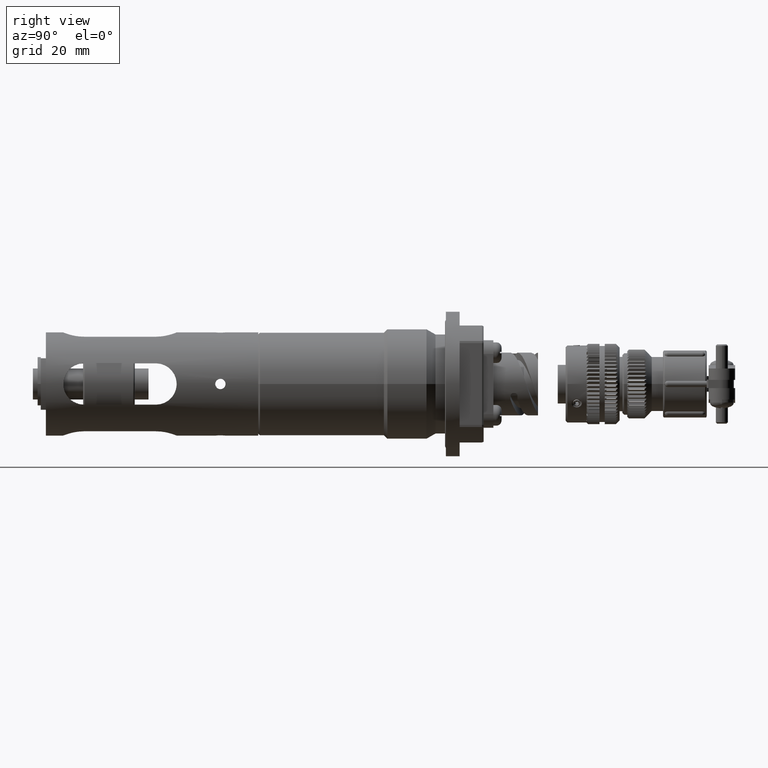
[diagram: clean part render]
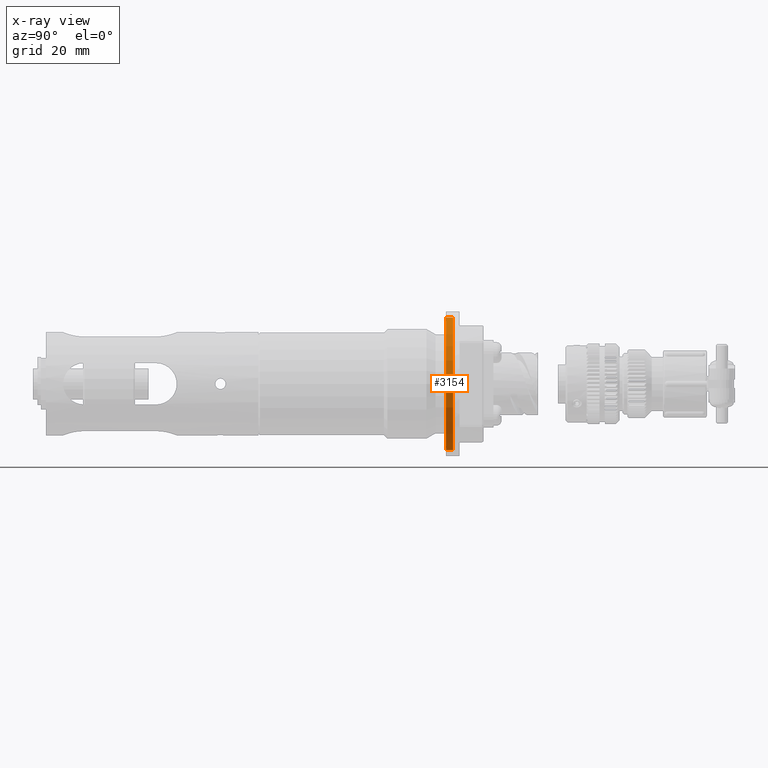
[diagram: x-ray — body ghosted, one internal face saturated and labeled with its STEP entity id]
A machine part, right view, then the same camera in x-ray: the body is ghosted and one INTERNAL B-rep face — a face not visible from any outside direction — is saturated and labeled: STEP entity #3154.
In plain terms, the highlighted cylindrical surface (partial cylindrical patch) has radius 19.3 mm, axis along (-0, 1, -0).
Its self-contained STEP definition (entity closure, byte-faithful):
#588 = CARTESIAN_POINT ( 'NONE',  ( 0.0000000000000000000, 2.100000000000000977, 19.30000000000000071 ) ) ;
#1599 = DIRECTION ( 'NONE',  ( 0.0000000000000000000, 0.0000000000000000000, 1.000000000000000000 ) ) ;
#2383 = CIRCLE ( 'NONE', #22230, 19.30000000000000071 ) ;
#2558 = DIRECTION ( 'NONE',  ( 0.0000000000000000000, 0.0000000000000000000, 1.000000000000000000 ) ) ;
#3154 = ADVANCED_FACE ( 'NONE', ( #66670 ), #24561, .F. ) ;
#4543 = CARTESIAN_POINT ( 'NONE',  ( 0.0000000000000000000, 13.35440716432312946, 19.30000000000000071 ) ) ;
#7422 = DIRECTION ( 'NONE',  ( -0.0000000000000000000, 1.000000000000000000, -0.0000000000000000000 ) ) ;
#7928 = AXIS2_PLACEMENT_3D ( 'NONE', #43446, #7422, #2558 ) ;
#9743 = LINE ( 'NONE', #4543, #55555 ) ;
#10480 = DIRECTION ( 'NONE',  ( -0.0000000000000000000, 1.000000000000000000, -0.0000000000000000000 ) ) ;
#14593 = VECTOR ( 'NONE', #10480, 1000.000000000000000 ) ;
#14891 = ORIENTED_EDGE ( 'NONE', *, *, #29404, .T. ) ;
#15144 = AXIS2_PLACEMENT_3D ( 'NONE', #20006, #29351, #56688 ) ;
#15336 = CARTESIAN_POINT ( 'NONE',  ( 2.363568322354391830E-15, 13.35440716432312946, -19.30000000000000071 ) ) ;
#16011 = VERTEX_POINT ( 'NONE', #39262 ) ;
#18912 = VERTEX_POINT ( 'NONE', #60107 ) ;
#20006 = CARTESIAN_POINT ( 'NONE',  ( 0.0000000000000000000, 13.35440716432312946, 0.0000000000000000000 ) ) ;
#22230 = AXIS2_PLACEMENT_3D ( 'NONE', #33822, #33132, #1599 ) ;
#22263 = CIRCLE ( 'NONE', #7928, 19.30000000000000071 ) ;
#23628 = EDGE_CURVE ( 'NONE', #16011, #67792, #22263, .T. ) ;
#24561 = CYLINDRICAL_SURFACE ( 'NONE', #15144, 19.30000000000000071 ) ;
#27902 = ORIENTED_EDGE ( 'NONE', *, *, #56260, .F. ) ;
#29351 = DIRECTION ( 'NONE',  ( -0.0000000000000000000, 1.000000000000000000, -0.0000000000000000000 ) ) ;
#29404 = EDGE_CURVE ( 'NONE', #46278, #18912, #2383, .T. ) ;
#31294 = EDGE_LOOP ( 'NONE', ( #27902, #66552, #54010, #14891 ) ) ;
#33132 = DIRECTION ( 'NONE',  ( -0.0000000000000000000, 1.000000000000000000, -0.0000000000000000000 ) ) ;
#33822 = CARTESIAN_POINT ( 'NONE',  ( 0.0000000000000000000, 2.100000000000000977, 0.0000000000000000000 ) ) ;
#39262 = CARTESIAN_POINT ( 'NONE',  ( 0.0000000000000000000, 0.0000000000000000000, 19.30000000000000071 ) ) ;
#43446 = CARTESIAN_POINT ( 'NONE',  ( 0.0000000000000000000, 0.0000000000000000000, 0.0000000000000000000 ) ) ;
#46101 = DIRECTION ( 'NONE',  ( -0.0000000000000000000, 1.000000000000000000, -0.0000000000000000000 ) ) ;
#46278 = VERTEX_POINT ( 'NONE', #588 ) ;
#54010 = ORIENTED_EDGE ( 'NONE', *, *, #57395, .T. ) ;
#55555 = VECTOR ( 'NONE', #46101, 1000.000000000000000 ) ;
#56260 = EDGE_CURVE ( 'NONE', #67792, #18912, #57898, .T. ) ;
#56688 = DIRECTION ( 'NONE',  ( 0.0000000000000000000, 0.0000000000000000000, 1.000000000000000000 ) ) ;
#57395 = EDGE_CURVE ( 'NONE', #16011, #46278, #9743, .T. ) ;
#57898 = LINE ( 'NONE', #15336, #14593 ) ;
#60107 = CARTESIAN_POINT ( 'NONE',  ( 2.363568322354391830E-15, 2.100000000000000977, -19.30000000000000071 ) ) ;
#64261 = CARTESIAN_POINT ( 'NONE',  ( 2.363568322354391830E-15, 0.0000000000000000000, -19.30000000000000071 ) ) ;
#66552 = ORIENTED_EDGE ( 'NONE', *, *, #23628, .F. ) ;
#66670 = FACE_OUTER_BOUND ( 'NONE', #31294, .T. ) ;
#67792 = VERTEX_POINT ( 'NONE', #64261 ) ;